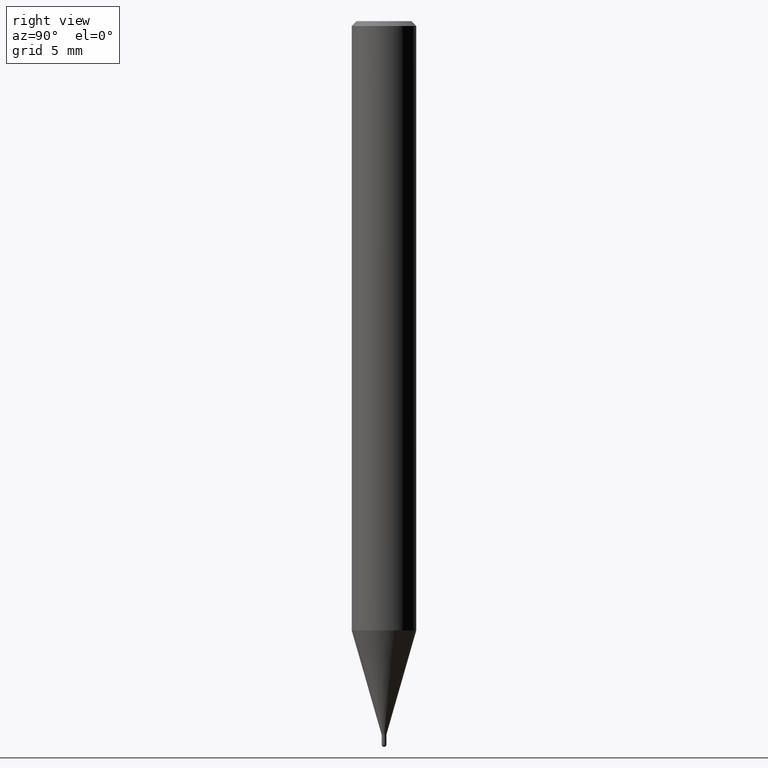
[diagram: clean part render]
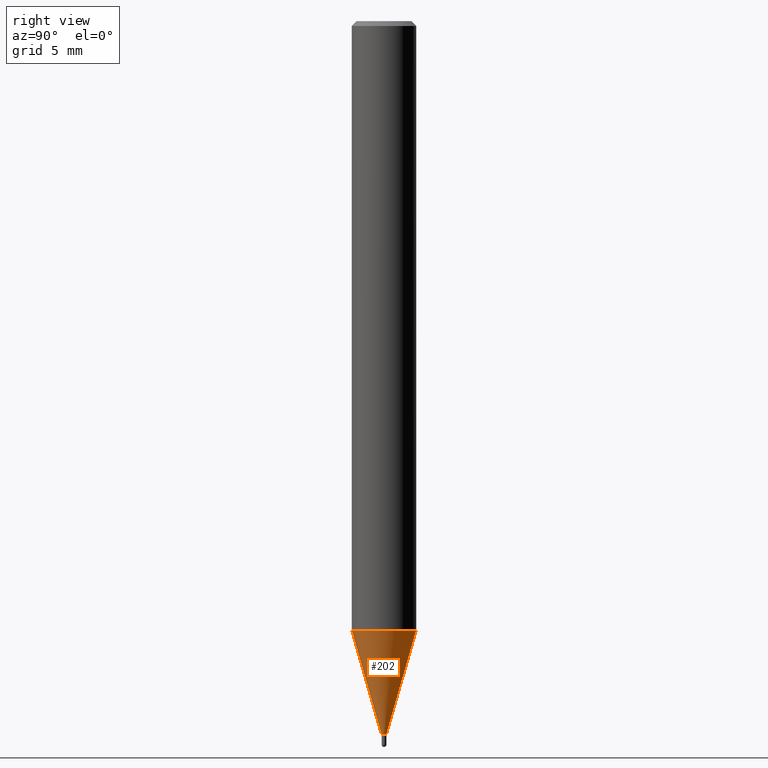
[diagram: same view with one face highlighted and labeled with its STEP entity id]
A machine part, right view. The second image highlights one B-rep face of the part: STEP entity #202.
In plain terms, the highlighted conical surface has half-angle 16 deg.
Its self-contained STEP definition (entity closure, byte-faithful):
#104=VERTEX_POINT('',#245);
#110=EDGE_CURVE('',#104,#212,#253,.T.);
#114=VERTEX_POINT('',#257);
#116=EDGE_CURVE('',#132,#212,#259,.T.);
#122=EDGE_CURVE('',#104,#114,#265,.T.);
#132=VERTEX_POINT('',#277);
#142=EDGE_CURVE('',#114,#132,#289,.T.);
#202=ADVANCED_FACE('',(#357),#358,.T.);
#212=VERTEX_POINT('',#370);
#245=CARTESIAN_POINT('',(0.0,1.99995,-37.781));
#253=CIRCLE('',#408,1.99995);
#257=CARTESIAN_POINT('',(0.0,0.14495,-44.25));
#259=LINE('',#417,#418);
#265=LINE('',#425,#426);
#277=CARTESIAN_POINT('',(1.77506690986553E-017,-0.14495,-44.25));
#289=CIRCLE('',#456,0.14495);
#357=FACE_OUTER_BOUND('',#542,.T.);
#358=CONICAL_SURFACE('',#543,1.07245,0.279258979430111);
#370=CARTESIAN_POINT('',(2.44915147732706E-016,-1.99995,-37.781));
#408=AXIS2_PLACEMENT_3D('',#581,#582,#583);
#417=CARTESIAN_POINT('',(1.31332908415681E-016,-1.07245,-41.0155));
#418=VECTOR('',#585,1.0);
#425=CARTESIAN_POINT('',(-1.31332908415681E-016,1.07245,-41.0155));
#426=VECTOR('',#586,1.0);
#456=AXIS2_PLACEMENT_3D('',#620,#621,#622);
#542=EDGE_LOOP('',(#715,#716,#717,#718));
#543=AXIS2_PLACEMENT_3D('',#719,#720,#721);
#581=CARTESIAN_POINT('',(0.0,0.0,-37.781));
#582=DIRECTION('',(0.0,0.0,-1.0));
#583=DIRECTION('',(0.0,1.0,0.0));
#585=DIRECTION('',(3.37554672384358E-017,-0.275643410905672,0.961259959648943));
#586=DIRECTION('',(3.37554672384358E-017,-0.275643410905672,-0.961259959648943));
#620=CARTESIAN_POINT('',(0.0,0.0,-44.25));
#621=DIRECTION('',(0.0,0.0,-1.0));
#622=DIRECTION('',(0.0,1.0,0.0));
#715=ORIENTED_EDGE('',*,*,#122,.F.);
#716=ORIENTED_EDGE('',*,*,#110,.T.);
#717=ORIENTED_EDGE('',*,*,#116,.F.);
#718=ORIENTED_EDGE('',*,*,#142,.F.);
#719=CARTESIAN_POINT('',(0.0,0.0,-41.0155));
#720=DIRECTION('',(-0.0,-0.0,1.0));
#721=DIRECTION('',(0.0,1.0,0.0));